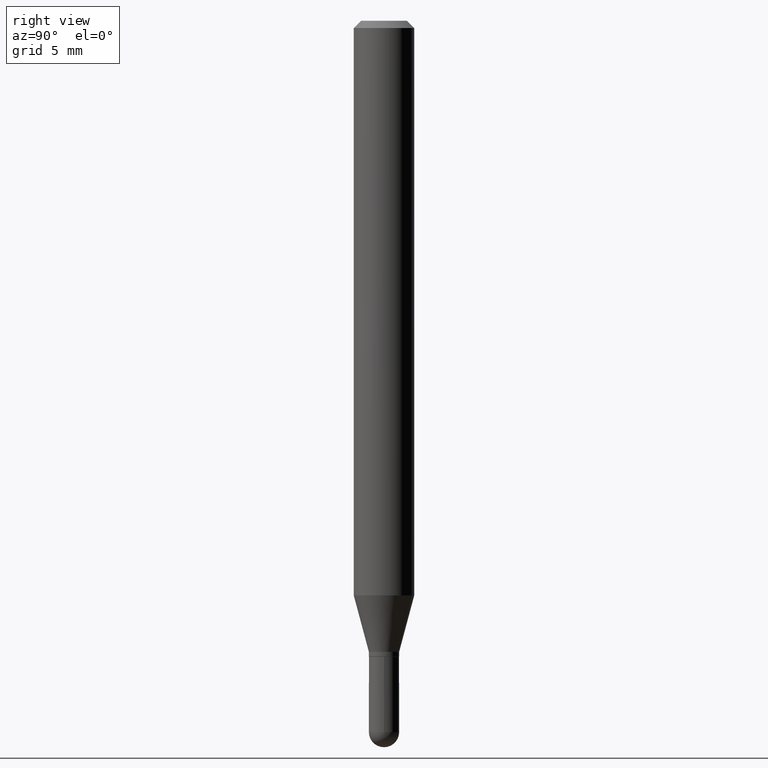
[diagram: clean part render]
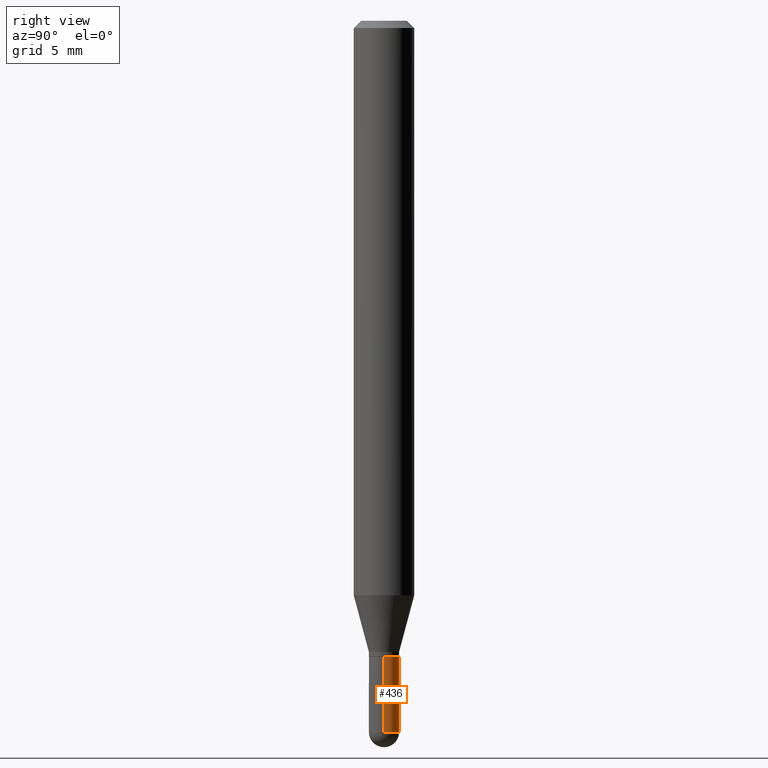
[diagram: same view with one face highlighted and labeled with its STEP entity id]
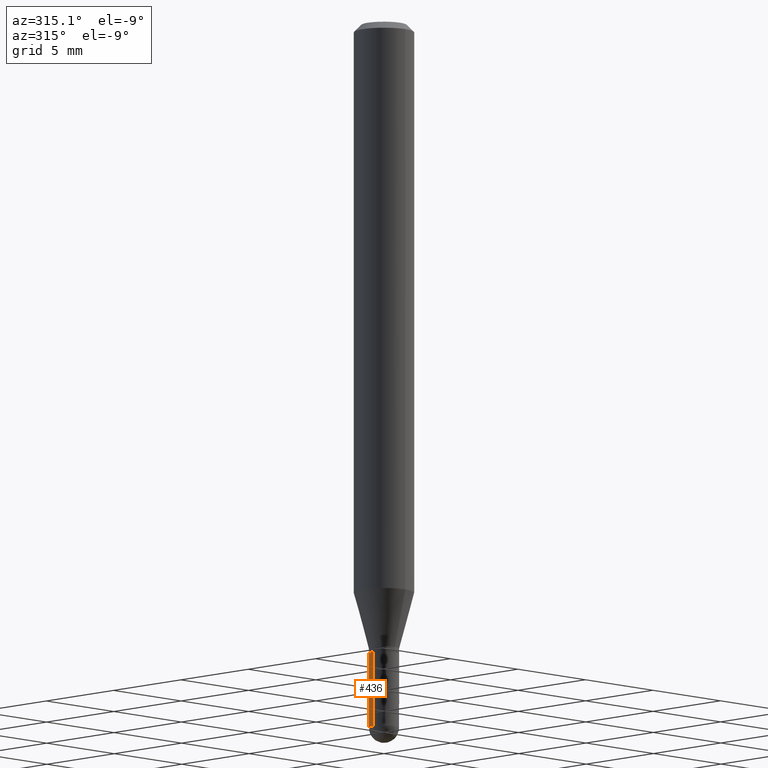
[diagram: same view with one face highlighted and labeled with its STEP entity id]
A machine part, right view. The second image highlights one B-rep face of the part: STEP entity #436.
A second angle (auxiliary view) of the same face is appended — the face is thin or edge-on in the first view.
In plain terms, the highlighted cylindrical surface (edge-blend (fillet) strip) has radius 0.7937 mm, axis along (-0, 0, 1).
Its self-contained STEP definition (entity closure, byte-faithful):
#14 = DIRECTION ( 'NONE',  ( -2.445468806185136877E-29, 3.491481338843145188E-15, 1.000000000000000000 ) ) ;
#19 = DIRECTION ( 'NONE',  ( -2.445468806185136597E-29, 3.491481338843145583E-15, 1.000000000000000000 ) ) ;
#39 = AXIS2_PLACEMENT_3D ( 'NONE', #185, #218, #108 ) ;
#40 = LINE ( 'NONE', #472, #101 ) ;
#60 = ORIENTED_EDGE ( 'NONE', *, *, #190, .T. ) ;
#65 = CIRCLE ( 'NONE', #434, 0.03125000000000000694 ) ;
#101 = VECTOR ( 'NONE', #146, 39.37007874015748143 ) ;
#106 = VERTEX_POINT ( 'NONE', #453 ) ;
#108 = DIRECTION ( 'NONE',  ( 1.000000000000000000, -6.982962677686261189E-15, 0.000000000000000000 ) ) ;
#117 = ORIENTED_EDGE ( 'NONE', *, *, #474, .F. ) ;
#123 = DIRECTION ( 'NONE',  ( -2.445468806185136597E-29, 3.491481338843145583E-15, 1.000000000000000000 ) ) ;
#128 = CARTESIAN_POINT ( 'NONE',  ( 2.220446049250678915E-16, 0.03124999999999497277, -1.468750000000000000 ) ) ;
#130 = CARTESIAN_POINT ( 'NONE',  ( -0.03125000000000000000, 2.220446049250313081E-16, -1.537167215704658057E-30 ) ) ;
#131 = VERTEX_POINT ( 'NONE', #173 ) ;
#146 = DIRECTION ( 'NONE',  ( -2.445468806185136877E-29, 3.491481338843145188E-15, 1.000000000000000000 ) ) ;
#162 = CARTESIAN_POINT ( 'NONE',  ( 0.03125000000000000694, -5.074431690841155672E-15, -1.468750000000000000 ) ) ;
#173 = CARTESIAN_POINT ( 'NONE',  ( 0.03125000000000000000, -4.802532581578746433E-15, -1.313000000000000167 ) ) ;
#178 = CIRCLE ( 'NONE', #39, 0.03125000000000000694 ) ;
#183 = DIRECTION ( 'NONE',  ( 1.000000000000000000, -6.982962677686261189E-15, 0.000000000000000000 ) ) ;
#185 = CARTESIAN_POINT ( 'NONE',  ( 3.591782309084418816E-29, -5.128113216425869865E-15, -1.468750000000000000 ) ) ;
#186 = VECTOR ( 'NONE', #14, 39.37007874015748143 ) ;
#190 = EDGE_CURVE ( 'NONE', #317, #106, #207, .T. ) ;
#192 = EDGE_CURVE ( 'NONE', #131, #106, #311, .T. ) ;
#207 = LINE ( 'NONE', #130, #186 ) ;
#218 = DIRECTION ( 'NONE',  ( -2.445468806185136597E-29, 3.491481338843145583E-15, 1.000000000000000000 ) ) ;
#227 = ORIENTED_EDGE ( 'NONE', *, *, #373, .T. ) ;
#229 = ORIENTED_EDGE ( 'NONE', *, *, #352, .T. ) ;
#235 = VERTEX_POINT ( 'NONE', #128 ) ;
#276 = AXIS2_PLACEMENT_3D ( 'NONE', #432, #19, #470 ) ;
#295 = CARTESIAN_POINT ( 'NONE',  ( 3.591782309084418816E-29, -5.128113216425869865E-15, -1.468750000000000000 ) ) ;
#298 = FACE_OUTER_BOUND ( 'NONE', #411, .T. ) ;
#311 = CIRCLE ( 'NONE', #371, 0.03125000000000000000 ) ;
#317 = VERTEX_POINT ( 'NONE', #406 ) ;
#336 = DIRECTION ( 'NONE',  ( 1.000000000000000000, -6.982962677686262766E-15, 0.000000000000000000 ) ) ;
#338 = VERTEX_POINT ( 'NONE', #162 ) ;
#352 = EDGE_CURVE ( 'NONE', #338, #235, #178, .T. ) ;
#367 = CARTESIAN_POINT ( 'NONE',  ( 3.210900542521084585E-29, -4.584314997901050598E-15, -1.313000000000000167 ) ) ;
#371 = AXIS2_PLACEMENT_3D ( 'NONE', #367, #123, #336 ) ;
#373 = EDGE_CURVE ( 'NONE', #235, #317, #65, .T. ) ;
#381 = DIRECTION ( 'NONE',  ( -2.445468806185136597E-29, 3.491481338843145583E-15, 1.000000000000000000 ) ) ;
#406 = CARTESIAN_POINT ( 'NONE',  ( -0.03125000000000000694, -4.634169502238429318E-15, -1.468750000000000000 ) ) ;
#411 = EDGE_LOOP ( 'NONE', ( #227, #60, #510, #117, #229 ) ) ;
#423 = CYLINDRICAL_SURFACE ( 'NONE', #276, 0.03125000000000000000 ) ;
#432 = CARTESIAN_POINT ( 'NONE',  ( 0.000000000000000000, 0.000000000000000000, 0.000000000000000000 ) ) ;
#434 = AXIS2_PLACEMENT_3D ( 'NONE', #295, #381, #183 ) ;
#436 = ADVANCED_FACE ( 'NONE', ( #298 ), #423, .T. ) ;
#453 = CARTESIAN_POINT ( 'NONE',  ( -0.03125000000000000000, -4.634169502238429318E-15, -1.313000000000000167 ) ) ;
#470 = DIRECTION ( 'NONE',  ( 1.000000000000000000, -6.982962677686266711E-15, 4.876176775795935793E-29 ) ) ;
#472 = CARTESIAN_POINT ( 'NONE',  ( 0.03125000000000000000, -2.182175836776958347E-16, 1.523805242436229935E-30 ) ) ;
#474 = EDGE_CURVE ( 'NONE', #338, #131, #40, .T. ) ;
#510 = ORIENTED_EDGE ( 'NONE', *, *, #192, .F. ) ;